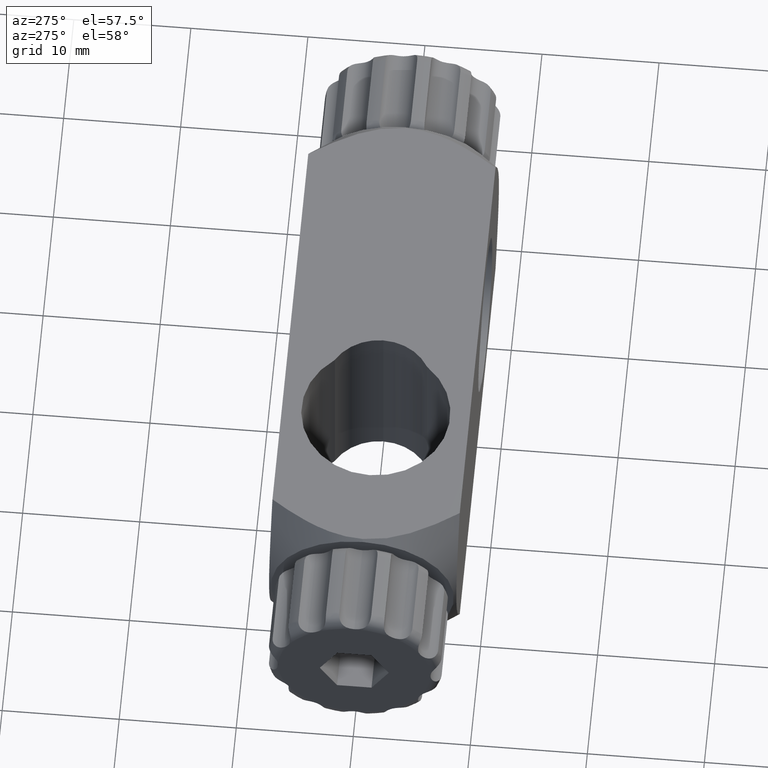
[diagram: clean part render]
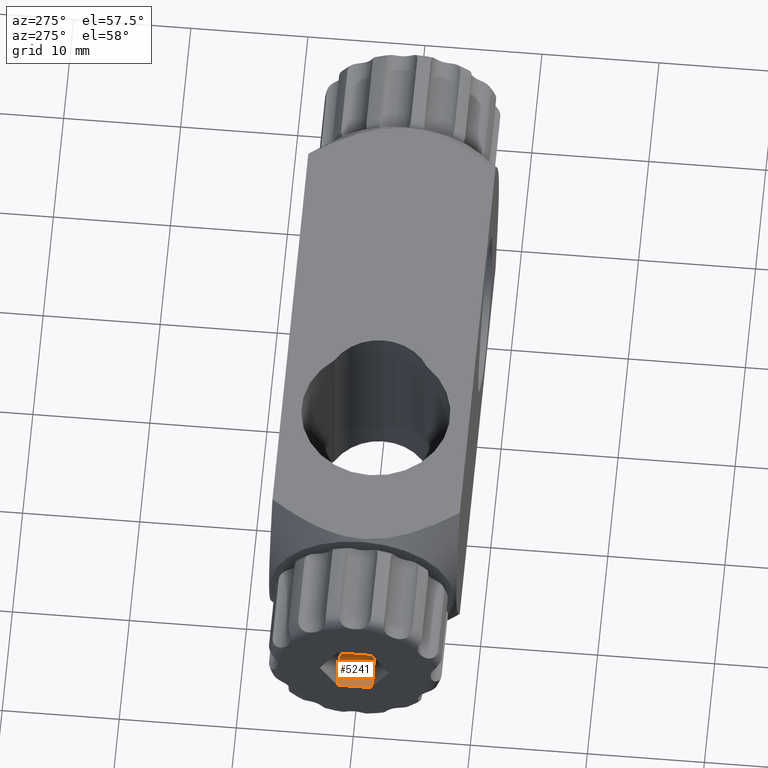
[diagram: same view with one face highlighted and labeled with its STEP entity id]
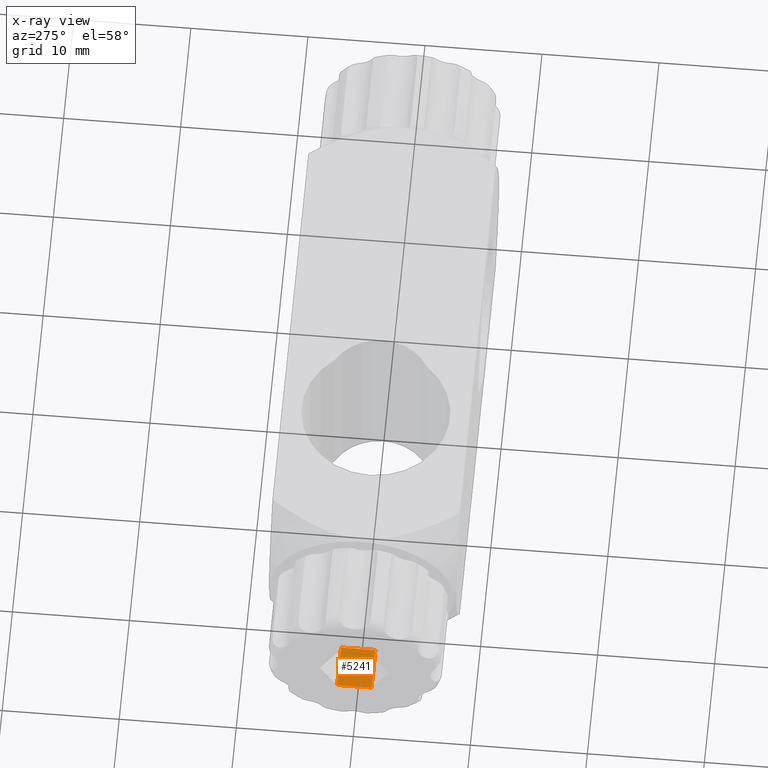
[diagram: x-ray of the same camera — body ghosted, the highlighted face saturated]
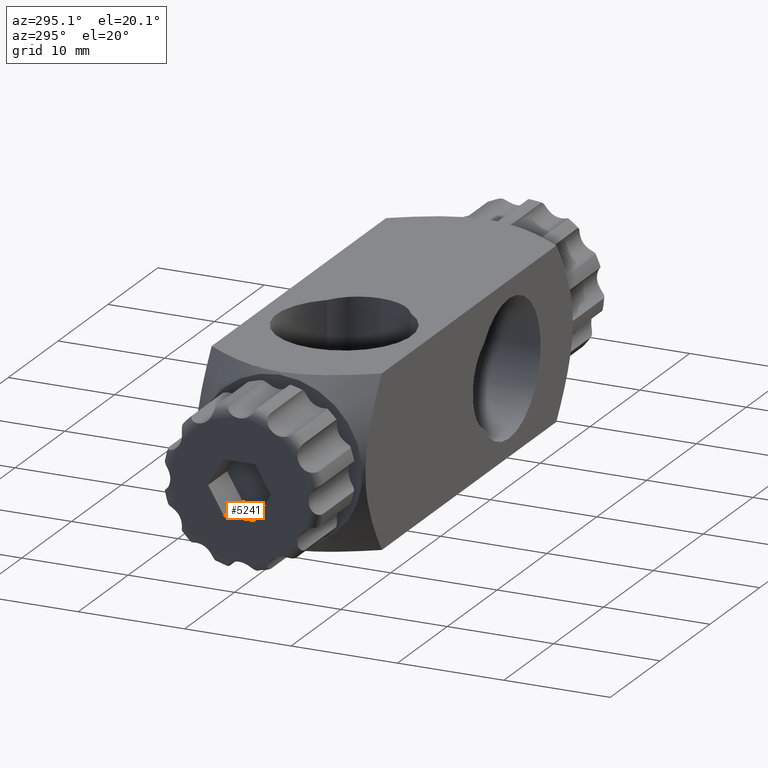
[diagram: same view with one face highlighted and labeled with its STEP entity id]
A machine part, auxiliary view. The second image highlights one B-rep face of the part: STEP entity #5241.
The next image is the same camera in x-ray: the body ghosted, the highlighted face saturated — about 0% of this face is hidden behind the body in this view.
A second angle (auxiliary view) of the same face is appended — the face is thin or edge-on in the first view.
In plain terms, the highlighted planar face has unit normal (-0, -0, -1).
Its self-contained STEP definition (entity closure, byte-faithful):
#104 = DIRECTION ( 'NONE',  ( -9.860761315262676000E-032, -1.887379141862758600E-015, -1.000000000000000000 ) ) ;
#131 = DIRECTION ( 'NONE',  ( -2.958228394578794300E-031, -1.000000000000000000, -1.942890293094019200E-015 ) ) ;
#494 = VERTEX_POINT ( 'NONE', #3012 ) ;
#646 = CARTESIAN_POINT ( 'NONE',  ( -25.20000000000000300, -1.472243186433553700, -2.550000000000028200 ) ) ;
#926 = CARTESIAN_POINT ( 'NONE',  ( -25.19999999999999900, 1.472243186433542400, -2.550000000000023400 ) ) ;
#1035 = EDGE_CURVE ( 'NONE', #3194, #494, #1501, .T. ) ;
#1123 = ORIENTED_EDGE ( 'NONE', *, *, #4779, .T. ) ;
#1375 = CARTESIAN_POINT ( 'NONE',  ( -28.99999999999999600, 1.472243186433545500, -2.550000000000008700 ) ) ;
#1501 = LINE ( 'NONE', #5596, #2143 ) ;
#1808 = ORIENTED_EDGE ( 'NONE', *, *, #2355, .F. ) ;
#1867 = VERTEX_POINT ( 'NONE', #2464 ) ;
#1903 = EDGE_CURVE ( 'NONE', #1867, #5742, #5000, .T. ) ;
#1920 = LINE ( 'NONE', #646, #4755 ) ;
#2143 = VECTOR ( 'NONE', #131, 1000.000000000000000 ) ;
#2355 = EDGE_CURVE ( 'NONE', #5742, #494, #1920, .T. ) ;
#2357 = CARTESIAN_POINT ( 'NONE',  ( -25.19999999999999900, 1.472243186433542400, -2.550000000000023400 ) ) ;
#2412 = PLANE ( 'NONE',  #2907 ) ;
#2464 = CARTESIAN_POINT ( 'NONE',  ( -25.19999999999999900, 1.472243186433542400, -2.550000000000023400 ) ) ;
#2530 = DIRECTION ( 'NONE',  ( -1.000000000000000000, -3.944304526105069500E-031, 1.479114197289407400E-031 ) ) ;
#2747 = FACE_OUTER_BOUND ( 'NONE', #5784, .T. ) ;
#2907 = AXIS2_PLACEMENT_3D ( 'NONE', #2357, #104, #3289 ) ;
#3012 = CARTESIAN_POINT ( 'NONE',  ( -29.00000000000000000, -1.472243186433551000, -2.550000000000028700 ) ) ;
#3194 = VERTEX_POINT ( 'NONE', #1375 ) ;
#3289 = DIRECTION ( 'NONE',  ( -1.000000000000000000, -2.958228394578804800E-031, 9.860761315262730800E-032 ) ) ;
#3793 = CARTESIAN_POINT ( 'NONE',  ( -25.20000000000000300, -1.472243186433553700, -2.550000000000028200 ) ) ;
#4755 = VECTOR ( 'NONE', #2530, 1000.000000000000000 ) ;
#4779 = EDGE_CURVE ( 'NONE', #1867, #3194, #5104, .T. ) ;
#4836 = VECTOR ( 'NONE', #4993, 1000.000000000000000 ) ;
#4958 = ORIENTED_EDGE ( 'NONE', *, *, #1035, .T. ) ;
#4993 = DIRECTION ( 'NONE',  ( -2.958228394578794300E-031, -1.000000000000000000, -1.942890293094019200E-015 ) ) ;
#5000 = LINE ( 'NONE', #926, #4836 ) ;
#5104 = LINE ( 'NONE', #5762, #5393 ) ;
#5231 = DIRECTION ( 'NONE',  ( -1.000000000000000000, -3.944304526105069500E-031, 1.479114197289407400E-031 ) ) ;
#5236 = ORIENTED_EDGE ( 'NONE', *, *, #1903, .F. ) ;
#5241 = ADVANCED_FACE ( 'NONE', ( #2747 ), #2412, .F. ) ;
#5393 = VECTOR ( 'NONE', #5231, 1000.000000000000000 ) ;
#5596 = CARTESIAN_POINT ( 'NONE',  ( -28.99999999999999600, 1.472243186433545500, -2.550000000000008700 ) ) ;
#5742 = VERTEX_POINT ( 'NONE', #3793 ) ;
#5762 = CARTESIAN_POINT ( 'NONE',  ( -25.19999999999999900, 1.472243186433542400, -2.550000000000023400 ) ) ;
#5784 = EDGE_LOOP ( 'NONE', ( #4958, #1808, #5236, #1123 ) ) ;